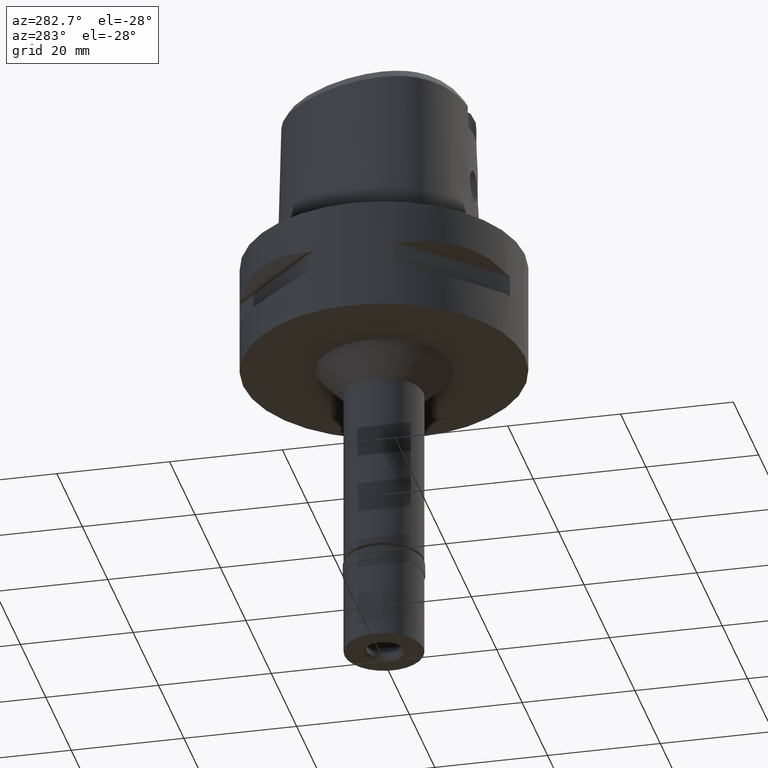
[diagram: clean part render]
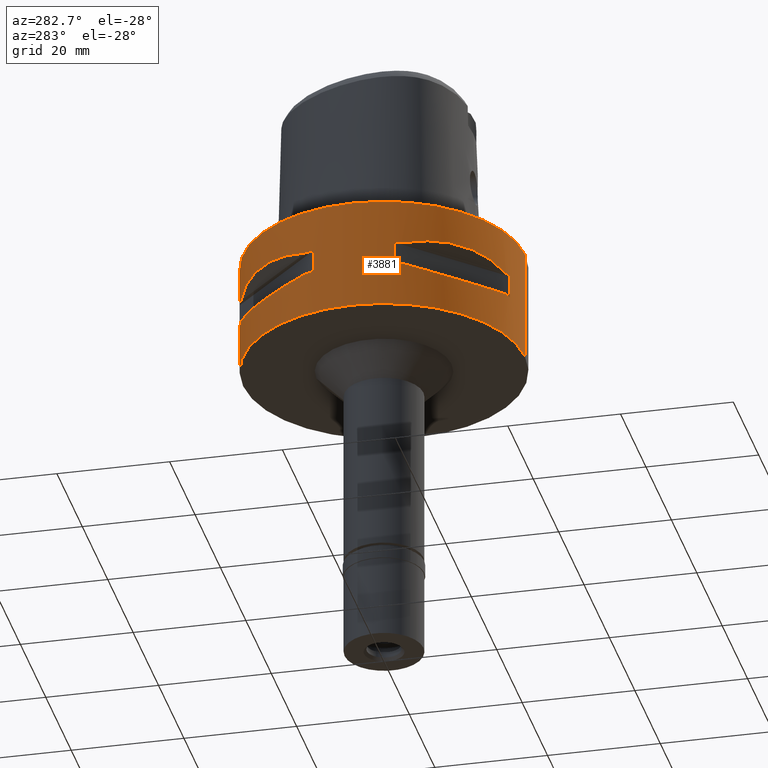
[diagram: same view with one face highlighted and labeled with its STEP entity id]
A machine part, auxiliary view. The second image highlights one B-rep face of the part: STEP entity #3881.
In plain terms, the highlighted cylindrical surface (partial cylindrical patch) has radius 25 mm, axis along (0, 0, -1).
Its self-contained STEP definition (entity closure, byte-faithful):
#7 = CARTESIAN_POINT ( 'NONE',  ( -8.646484890751999330, -23.45715880140000209, -12.05000000000000071 ) ) ;
#15 = CARTESIAN_POINT ( 'NONE',  ( -13.60713573003134336, -20.97251445226632427, -13.06082541677992737 ) ) ;
#24 = CARTESIAN_POINT ( 'NONE',  ( -20.11654071402983845, -14.85488513037752867, -6.779232838917351067 ) ) ;
#45 = CARTESIAN_POINT ( 'NONE',  ( -13.41274673326596734, -21.09754014382172116, -6.967492033991906197 ) ) ;
#46 = VECTOR ( 'NONE', #4462, 1000.000000000000000 ) ;
#72 = CARTESIAN_POINT ( 'NONE',  ( -13.48572973711240586, -21.05082155772251440, -6.956769630346564703 ) ) ;
#75 = CARTESIAN_POINT ( 'NONE',  ( -8.646484890751999330, -23.45715880140000209, -7.949999999998999201 ) ) ;
#148 = CARTESIAN_POINT ( 'NONE',  ( 0.0000000000000000000, 1.268121760516999976E-14, 0.0000000000000000000 ) ) ;
#216 = AXIS2_PLACEMENT_3D ( 'NONE', #3290, #3199, #2540 ) ;
#222 = CARTESIAN_POINT ( 'NONE',  ( -13.55971422200847876, 21.00321793043605112, -13.05400030967244973 ) ) ;
#260 = CARTESIAN_POINT ( 'NONE',  ( -16.07509500019082438, 19.18226349638528561, -6.662501322481643840 ) ) ;
#264 = EDGE_CURVE ( 'NONE', #4299, #1804, #3673, .T. ) ;
#265 = CARTESIAN_POINT ( 'NONE',  ( -12.20403021318595371, 21.82791133048168319, -12.83722430138688786 ) ) ;
#307 = CARTESIAN_POINT ( 'NONE',  ( 0.0000000000000000000, -25.00000000000000000, -20.00000000000000000 ) ) ;
#316 = CARTESIAN_POINT ( 'NONE',  ( -21.09754014382214038, -13.41274673326243061, -13.03250796600576145 ) ) ;
#371 = LINE ( 'NONE', #1915, #2850 ) ;
#390 = CARTESIAN_POINT ( 'NONE',  ( -21.05082155772251795, -13.48572973711011258, -13.04323036965143245 ) ) ;
#397 = CARTESIAN_POINT ( 'NONE',  ( -9.515641234303622298, -23.13678124605047159, -7.725961997872158982 ) ) ;
#437 = CIRCLE ( 'NONE', #744, 24.99999999999999645 ) ;
#444 = CARTESIAN_POINT ( 'NONE',  ( -12.20403021318549541, -21.82791133048300836, -7.162775698611675956 ) ) ;
#473 = LINE ( 'NONE', #1967, #1696 ) ;
#521 = CARTESIAN_POINT ( 'NONE',  ( -23.45715880140000209, 8.646484890751999330, -12.05000000000000071 ) ) ;
#530 = AXIS2_PLACEMENT_3D ( 'NONE', #148, #3875, #2126 ) ;
#550 = EDGE_CURVE ( 'NONE', #1225, #4546, #1493, .T. ) ;
#558 = DIRECTION ( 'NONE',  ( 0.0000000000000000000, 0.0000000000000000000, -1.000000000000000000 ) ) ;
#578 = VERTEX_POINT ( 'NONE', #2880 ) ;
#592 = CARTESIAN_POINT ( 'NONE',  ( -12.89853354822316334, 21.41803043592330980, -12.95342092614004059 ) ) ;
#604 = ORIENTED_EDGE ( 'NONE', *, *, #3760, .F. ) ;
#617 = CARTESIAN_POINT ( 'NONE',  ( -20.95817024473907608, 13.62920640916738080, -13.06397973560553183 ) ) ;
#661 = CARTESIAN_POINT ( 'NONE',  ( -13.90573822668236659, 20.77616787493510486, -6.897428778966878227 ) ) ;
#667 = EDGE_CURVE ( 'NONE', #4299, #2069, #1507, .T. ) ;
#672 = CARTESIAN_POINT ( 'NONE',  ( 0.0000000000000000000, -25.00000000000000000, 0.0000000000000000000 ) ) ;
#690 = CARTESIAN_POINT ( 'NONE',  ( -9.515641234304203167, 23.13678124604968644, -12.27403800212667484 ) ) ;
#699 = CARTESIAN_POINT ( 'NONE',  ( -23.95277699797999915, -7.159921374231999813, -12.05000000000000071 ) ) ;
#703 = VERTEX_POINT ( 'NONE', #4005 ) ;
#726 = CARTESIAN_POINT ( 'NONE',  ( -21.41803043592740607, -12.89853354821195097, -12.95342092613715756 ) ) ;
#731 = EDGE_CURVE ( 'NONE', #1878, #790, #1330, .T. ) ;
#744 = AXIS2_PLACEMENT_3D ( 'NONE', #2790, #558, #2052 ) ;
#751 = CARTESIAN_POINT ( 'NONE',  ( -13.67544437571095095, -20.92801700160415024, -13.07054629643969790 ) ) ;
#763 = VECTOR ( 'NONE', #2189, 1000.000000000000000 ) ;
#790 = VERTEX_POINT ( 'NONE', #699 ) ;
#794 = ORIENTED_EDGE ( 'NONE', *, *, #4571, .T. ) ;
#806 = CARTESIAN_POINT ( 'NONE',  ( -16.43106916202177459, -18.92421359266085545, -6.622523911514719863 ) ) ;
#830 = CARTESIAN_POINT ( 'NONE',  ( -20.56020460723686583, -14.22535762327827413, -6.855111341548293602 ) ) ;
#839 = EDGE_CURVE ( 'NONE', #1855, #939, #437, .T. ) ;
#887 = ORIENTED_EDGE ( 'NONE', *, *, #1529, .T. ) ;
#934 = AXIS2_PLACEMENT_3D ( 'NONE', #4814, #2209, #3340 ) ;
#939 = VERTEX_POINT ( 'NONE', #7 ) ;
#949 = CARTESIAN_POINT ( 'NONE',  ( -13.60713573003141086, 20.97251445226709876, -6.939174583218663095 ) ) ;
#970 = CARTESIAN_POINT ( 'NONE',  ( -23.45715880140000209, 8.646484890751999330, -7.949999999998999201 ) ) ;
#998 = CARTESIAN_POINT ( 'NONE',  ( -21.20561591939717516, 13.24197703503613432, -6.993086720738032724 ) ) ;
#1004 = CARTESIAN_POINT ( 'NONE',  ( -23.45715880140000209, 8.646484890751999330, -12.05000000000000071 ) ) ;
#1021 = CARTESIAN_POINT ( 'NONE',  ( -14.85488513039036818, 20.11654071401968480, -6.779232838916250614 ) ) ;
#1045 = CARTESIAN_POINT ( 'NONE',  ( -21.82791133048873178, -12.20403021316673353, -12.83722430138194071 ) ) ;
#1064 = LINE ( 'NONE', #4069, #763 ) ;
#1098 = CARTESIAN_POINT ( 'NONE',  ( -20.97251445226704547, -13.60713573003157428, -6.939174583218620462 ) ) ;
#1101 = CARTESIAN_POINT ( 'NONE',  ( -23.45715880140000209, -8.646484890751999330, -7.949999999998999201 ) ) ;
#1105 = VERTEX_POINT ( 'NONE', #2243 ) ;
#1111 = CARTESIAN_POINT ( 'NONE',  ( -21.01958685664123294, -13.53433973752398600, -13.05032380590026442 ) ) ;
#1119 = CARTESIAN_POINT ( 'NONE',  ( -13.53433973752544439, -21.01958685664153137, -6.949676194097961002 ) ) ;
#1133 = CARTESIAN_POINT ( 'NONE',  ( 0.0000000000000000000, 1.268121760516999976E-14, -12.05000000000000071 ) ) ;
#1136 = CYLINDRICAL_SURFACE ( 'NONE', #2096, 25.00000000000000000 ) ;
#1145 = CARTESIAN_POINT ( 'NONE',  ( -21.99328990739648759, -12.03062603423200372, -7.166052136924453642 ) ) ;
#1174 = CARTESIAN_POINT ( 'NONE',  ( -23.45715880140000209, 8.646484890751999330, -7.949999999998999201 ) ) ;
#1178 = EDGE_LOOP ( 'NONE', ( #887, #1898, #3316, #794 ) ) ;
#1192 = EDGE_CURVE ( 'NONE', #3388, #578, #4421, .T. ) ;
#1225 = VERTEX_POINT ( 'NONE', #1788 ) ;
#1287 = CARTESIAN_POINT ( 'NONE',  ( -12.03062603424247712, 21.99328990739261513, -7.166052136921753579 ) ) ;
#1313 = CARTESIAN_POINT ( 'NONE',  ( 0.0000000000000000000, 1.268121760516999976E-14, -7.950000000000000178 ) ) ;
#1330 = CIRCLE ( 'NONE', #934, 25.00000000000001066 ) ;
#1338 = ORIENTED_EDGE ( 'NONE', *, *, #3926, .F. ) ;
#1341 = DIRECTION ( 'NONE',  ( 0.0000000000000000000, 0.0000000000000000000, 1.000000000000000000 ) ) ;
#1350 = CARTESIAN_POINT ( 'NONE',  ( -13.53433973752487773, 21.01958685664092386, -13.05032380590049002 ) ) ;
#1367 = CARTESIAN_POINT ( 'NONE',  ( -21.82791133048288401, 12.20403021318581871, -7.162775698611593356 ) ) ;
#1371 = CARTESIAN_POINT ( 'NONE',  ( -13.41274673326552147, 21.09754014382100706, -13.03250796600654482 ) ) ;
#1419 = CARTESIAN_POINT ( 'NONE',  ( -8.646484890751999330, -23.45715880140000209, -12.05000000000000071 ) ) ;
#1453 = B_SPLINE_CURVE_WITH_KNOTS ( 'NONE', 3,
 ( #970, #4725, #4649, #1367, #2125, #998, #2874, #2484, #2410, #1747, #2826, #1691, #3620, #260, #1021, #1764, #661, #2145, #3176, #3246, #949, #1287, #3921, #2456 ),
 .UNSPECIFIED., .F., .F.,
 ( 4, 1, 1, 1, 1, 1, 2, 2, 2, 1, 1, 1, 1, 1, 2, 2, 4 ),
 ( 0.0000000000000000000, 0.1249999999999922562, 0.1874999999999882039, 0.2187499999999859557, 0.2343749999999848455, 0.2421874999999842903, 0.2460937499999842626, 0.2499999999999842071, 0.4999999999999868994, 0.6249999999999883427, 0.6874999999999888978, 0.7187499999999892308, 0.7343749999999894529, 0.7421874999999897859, 0.7460937499999900080, 0.7499999999999901190, 1.000000000000000000 ),
 .UNSPECIFIED. ) ;
#1465 = DIRECTION ( 'NONE',  ( -0.3458593956303108730, 0.9382863520558295534, 0.0000000000000000000 ) ) ;
#1468 = CARTESIAN_POINT ( 'NONE',  ( -21.20561591939858914, -13.24197703502974655, -13.00691327925887641 ) ) ;
#1493 = CIRCLE ( 'NONE', #4225, 24.99999999999999645 ) ;
#1507 = B_SPLINE_CURVE_WITH_KNOTS ( 'NONE', 3,
 ( #4729, #690, #4361, #265, #592, #2086, #1371, #3575, #1350, #222, #1728, #3210, #1798, #2851, #4709, #2831, #2129, #1750, #4335, #617, #2108, #3601, #2532, #1004 ),
 .UNSPECIFIED., .F., .F.,
 ( 4, 1, 1, 1, 1, 1, 2, 2, 2, 1, 1, 1, 1, 1, 2, 2, 4 ),
 ( 0.0000000000000000000, 0.1250000000000036637, 0.1875000000000053846, 0.2187500000000062450, 0.2343750000000066613, 0.2421875000000070222, 0.2460937500000072164, 0.2500000000000074385, 0.5000000000000064393, 0.6250000000000058842, 0.6875000000000056621, 0.7187500000000056621, 0.7343750000000057732, 0.7421875000000057732, 0.7460937500000057732, 0.7500000000000057732, 1.000000000000000000 ),
 .UNSPECIFIED. ) ;
#1512 = ORIENTED_EDGE ( 'NONE', *, *, #839, .T. ) ;
#1520 = CARTESIAN_POINT ( 'NONE',  ( -23.13678124605508302, -9.515641234289542894, -12.27403800212291785 ) ) ;
#1528 = CARTESIAN_POINT ( 'NONE',  ( -20.88268233906343951, -13.74471461761583058, -6.919682044202548177 ) ) ;
#1529 = EDGE_CURVE ( 'NONE', #3819, #4344, #3407, .T. ) ;
#1554 = CARTESIAN_POINT ( 'NONE',  ( -18.30096971348604740, -17.05439749816643058, -6.622489432101155593 ) ) ;
#1580 = CARTESIAN_POINT ( 'NONE',  ( -20.92801700160447709, -13.67544437571133287, -6.929453703558946742 ) ) ;
#1687 = DIRECTION ( 'NONE',  ( 0.0000000000000000000, 0.0000000000000000000, 1.000000000000000000 ) ) ;
#1691 = CARTESIAN_POINT ( 'NONE',  ( -18.92421359264128000, 16.43106916203722534, -6.622523911516391415 ) ) ;
#1696 = VECTOR ( 'NONE', #2636, 1000.000000000000000 ) ;
#1728 = CARTESIAN_POINT ( 'NONE',  ( -15.06560254767022045, 20.02826730454214754, -13.27075471794550943 ) ) ;
#1747 = CARTESIAN_POINT ( 'NONE',  ( -21.00321793043669416, 13.55971422200900811, -6.945999690326000398 ) ) ;
#1750 = CARTESIAN_POINT ( 'NONE',  ( -20.88268233906128657, 13.74471461761766378, -13.08031795579624479 ) ) ;
#1760 = CARTESIAN_POINT ( 'NONE',  ( 0.0000000000000000000, 1.268121760516999976E-14, -7.950000000000000178 ) ) ;
#1764 = CARTESIAN_POINT ( 'NONE',  ( -14.22535762328576681, 20.56020460723094700, -6.855111341547652337 ) ) ;
#1779 = LINE ( 'NONE', #2961, #46 ) ;
#1784 = ORIENTED_EDGE ( 'NONE', *, *, #1837, .F. ) ;
#1788 = CARTESIAN_POINT ( 'NONE',  ( -7.159921374235000080, 23.95277699797999915, -7.950000000000000178 ) ) ;
#1793 = FACE_BOUND ( 'NONE', #2307, .T. ) ;
#1798 = CARTESIAN_POINT ( 'NONE',  ( -18.30096971347869328, 17.05439749817792361, -13.37751056789945459 ) ) ;
#1804 = VERTEX_POINT ( 'NONE', #2883 ) ;
#1837 = EDGE_CURVE ( 'NONE', #3388, #4515, #3364, .T. ) ;
#1839 = DIRECTION ( 'NONE',  ( 0.0000000000000000000, -1.000000000000000000, 0.0000000000000000000 ) ) ;
#1849 = AXIS2_PLACEMENT_3D ( 'NONE', #1760, #1341, #2522 ) ;
#1855 = VERTEX_POINT ( 'NONE', #3795 ) ;
#1862 = EDGE_CURVE ( 'NONE', #703, #4153, #473, .T. ) ;
#1864 = VERTEX_POINT ( 'NONE', #1174 ) ;
#1871 = DIRECTION ( 'NONE',  ( -0.9581110799190402094, 0.2863968549694120291, 0.0000000000000000000 ) ) ;
#1878 = VERTEX_POINT ( 'NONE', #4560 ) ;
#1884 = CARTESIAN_POINT ( 'NONE',  ( -13.62920640916678572, -20.95817024473966939, -13.06397973560553716 ) ) ;
#1892 = CARTESIAN_POINT ( 'NONE',  ( -13.24197703503602419, -21.20561591939718937, -6.993086720738051376 ) ) ;
#1898 = ORIENTED_EDGE ( 'NONE', *, *, #2787, .F. ) ;
#1915 = CARTESIAN_POINT ( 'NONE',  ( -23.95277699797999915, -7.159921374231999813, -7.950000000000000178 ) ) ;
#1919 = EDGE_CURVE ( 'NONE', #1105, #790, #371, .T. ) ;
#1925 = AXIS2_PLACEMENT_3D ( 'NONE', #3654, #2854, #2111 ) ;
#1941 = CIRCLE ( 'NONE', #216, 24.99999999999999645 ) ;
#1967 = CARTESIAN_POINT ( 'NONE',  ( -23.95277699797999915, 7.159921374231999813, -12.05000000000000071 ) ) ;
#2008 = EDGE_CURVE ( 'NONE', #703, #2069, #2692, .T. ) ;
#2052 = DIRECTION ( 'NONE',  ( -0.2863968549694120291, -0.9581110799190402094, 0.0000000000000000000 ) ) ;
#2069 = VERTEX_POINT ( 'NONE', #521 ) ;
#2086 = CARTESIAN_POINT ( 'NONE',  ( -13.24197703503574530, 21.20561591939639356, -13.00691327926040941 ) ) ;
#2090 = EDGE_LOOP ( 'NONE', ( #4658, #4662, #1512, #1338, #2139, #4352, #3557, #1784 ) ) ;
#2096 = AXIS2_PLACEMENT_3D ( 'NONE', #4404, #3344, #1839 ) ;
#2108 = CARTESIAN_POINT ( 'NONE',  ( -20.97251445226646638, 13.60713573003095611, -13.06082541677981901 ) ) ;
#2111 = DIRECTION ( 'NONE',  ( 0.0000000000000000000, 1.000000000000000000, 0.0000000000000000000 ) ) ;
#2125 = CARTESIAN_POINT ( 'NONE',  ( -21.41803043592425126, 12.89853354822334808, -7.046579073858415754 ) ) ;
#2126 = DIRECTION ( 'NONE',  ( 0.0000000000000000000, -1.000000000000000000, 0.0000000000000000000 ) ) ;
#2129 = CARTESIAN_POINT ( 'NONE',  ( -20.77616787493465722, 13.90573822668246784, -13.10257122103190675 ) ) ;
#2134 = ORIENTED_EDGE ( 'NONE', *, *, #3984, .F. ) ;
#2139 = ORIENTED_EDGE ( 'NONE', *, *, #731, .T. ) ;
#2145 = CARTESIAN_POINT ( 'NONE',  ( -13.74471461761790003, 20.88268233906179816, -6.919682044202368765 ) ) ;
#2189 = DIRECTION ( 'NONE',  ( 0.0000000000000000000, 0.0000000000000000000, -1.000000000000000000 ) ) ;
#2209 = DIRECTION ( 'NONE',  ( 0.0000000000000000000, 0.0000000000000000000, -1.000000000000000000 ) ) ;
#2211 = CARTESIAN_POINT ( 'NONE',  ( -13.90573822667844439, -20.77616787493860073, -13.10257122103188010 ) ) ;
#2219 = CARTESIAN_POINT ( 'NONE',  ( -15.06560254768771223, -20.02826730453156046, -6.729245282050584365 ) ) ;
#2243 = CARTESIAN_POINT ( 'NONE',  ( -23.95277699797999915, -7.159921374235000080, -7.950000000000000178 ) ) ;
#2250 = CARTESIAN_POINT ( 'NONE',  ( -12.89853354822315801, -21.41803043592431521, -7.046579073858463715 ) ) ;
#2288 = CARTESIAN_POINT ( 'NONE',  ( -20.95817024474013479, -13.62920640916726001, -6.936020264393014223 ) ) ;
#2307 = EDGE_LOOP ( 'NONE', ( #4391, #4760, #2666, #4453, #3883, #2134, #4465, #604 ) ) ;
#2308 = CARTESIAN_POINT ( 'NONE',  ( -23.45715880140000209, -8.646484890756999775, -12.05000000000000071 ) ) ;
#2410 = CARTESIAN_POINT ( 'NONE',  ( -21.01958685664152426, 13.53433973752546216, -6.949676194097958337 ) ) ;
#2456 = CARTESIAN_POINT ( 'NONE',  ( -8.646484890751999330, 23.45715880140000209, -7.949999999998999201 ) ) ;
#2468 = VECTOR ( 'NONE', #3183, 1000.000000000000000 ) ;
#2484 = CARTESIAN_POINT ( 'NONE',  ( -21.05082155772250019, 13.48572973711244138, -6.956769630346555822 ) ) ;
#2522 = DIRECTION ( 'NONE',  ( -0.3458593956303108730, -0.9382863520558295534, 0.0000000000000000000 ) ) ;
#2532 = CARTESIAN_POINT ( 'NONE',  ( -22.81626994451528390, 10.38516041958025227, -12.49816953211541559 ) ) ;
#2540 = DIRECTION ( 'NONE',  ( -0.9581110799190402094, -0.2863968549694120291, 0.0000000000000000000 ) ) ;
#2550 = AXIS2_PLACEMENT_3D ( 'NONE', #1313, #4275, #3545 ) ;
#2552 = CARTESIAN_POINT ( 'NONE',  ( -14.85488513037911140, -20.11654071403224009, -13.22076716108321115 ) ) ;
#2597 = CARTESIAN_POINT ( 'NONE',  ( -20.02826730456327553, -15.06560254764963425, -13.27075471794574923 ) ) ;
#2630 = VECTOR ( 'NONE', #3447, 1000.000000000000000 ) ;
#2636 = DIRECTION ( 'NONE',  ( 0.0000000000000000000, 0.0000000000000000000, 1.000000000000000000 ) ) ;
#2660 = CARTESIAN_POINT ( 'NONE',  ( -22.81626994451701762, -10.38516041957876013, -7.501830467883404019 ) ) ;
#2666 = ORIENTED_EDGE ( 'NONE', *, *, #2008, .T. ) ;
#2692 = CIRCLE ( 'NONE', #3967, 24.99999999999999645 ) ;
#2767 = B_SPLINE_CURVE_WITH_KNOTS ( 'NONE', 3,
 ( #2308, #1520, #4474, #1045, #726, #1468, #316, #390, #1111, #2995, #2597, #3368, #3318, #4109, #2552, #3765, #2211, #4136, #751, #1884, #15, #4499, #4776, #1419 ),
 .UNSPECIFIED., .F., .F.,
 ( 4, 1, 1, 1, 1, 1, 2, 2, 2, 1, 1, 1, 1, 1, 2, 2, 4 ),
 ( 0.0000000000000000000, 0.1250000000000040246, 0.1875000000000059952, 0.2187500000000070222, 0.2343750000000075218, 0.2421875000000078548, 0.2460937500000080214, 0.2500000000000082157, 0.5000000000000073275, 0.6250000000000072164, 0.6875000000000067724, 0.7187500000000063283, 0.7343750000000063283, 0.7421875000000063283, 0.7460937500000062172, 0.7500000000000061062, 1.000000000000000000 ),
 .UNSPECIFIED. ) ;
#2787 = EDGE_CURVE ( 'NONE', #4270, #4344, #1779, .T. ) ;
#2790 = CARTESIAN_POINT ( 'NONE',  ( 0.0000000000000000000, 1.268121760516999976E-14, -12.05000000000000071 ) ) ;
#2826 = CARTESIAN_POINT ( 'NONE',  ( -20.02826730453874404, 15.06560254767642704, -6.729245282052261246 ) ) ;
#2831 = CARTESIAN_POINT ( 'NONE',  ( -20.56020460723066634, 14.22535762328647024, -13.14488865845144616 ) ) ;
#2850 = VECTOR ( 'NONE', #3400, 1000.000000000000000 ) ;
#2851 = CARTESIAN_POINT ( 'NONE',  ( -19.18226349638564088, 16.07509500019342141, -13.33749867751847695 ) ) ;
#2854 = DIRECTION ( 'NONE',  ( 0.0000000000000000000, 0.0000000000000000000, 1.000000000000000000 ) ) ;
#2874 = CARTESIAN_POINT ( 'NONE',  ( -21.09754014382168563, 13.41274673326602240, -6.967492033991893763 ) ) ;
#2880 = CARTESIAN_POINT ( 'NONE',  ( -7.159921374231999813, -23.95277699797999915, -7.950000000000000178 ) ) ;
#2883 = CARTESIAN_POINT ( 'NONE',  ( -7.159921374231999813, 23.95277699797999915, -12.05000000000000071 ) ) ;
#2961 = CARTESIAN_POINT ( 'NONE',  ( 0.0000000000000000000, -25.00000000000000000, 0.0000000000000000000 ) ) ;
#2973 = FACE_BOUND ( 'NONE', #2090, .T. ) ;
#2995 = CARTESIAN_POINT ( 'NONE',  ( -21.00321793043570295, -13.55971422200881804, -13.05400030967246572 ) ) ;
#3003 = CARTESIAN_POINT ( 'NONE',  ( -23.45715880140000209, -8.646484890751999330, -7.949999999998999201 ) ) ;
#3021 = CIRCLE ( 'NONE', #530, 25.00000000000000000 ) ;
#3025 = LINE ( 'NONE', #3050, #2630 ) ;
#3050 = CARTESIAN_POINT ( 'NONE',  ( -7.159921374231999813, -23.95277699797999915, -12.05000000000000071 ) ) ;
#3073 = EDGE_CURVE ( 'NONE', #4270, #3962, #3021, .T. ) ;
#3094 = CARTESIAN_POINT ( 'NONE',  ( -23.95277699797999915, 7.159921374231999813, -7.950000000000000178 ) ) ;
#3170 = DIRECTION ( 'NONE',  ( -0.2863968549694120291, 0.9581110799190402094, 0.0000000000000000000 ) ) ;
#3176 = CARTESIAN_POINT ( 'NONE',  ( -13.67544437571253013, 20.92801700160351785, -6.929453703558844602 ) ) ;
#3183 = DIRECTION ( 'NONE',  ( 0.0000000000000000000, 0.0000000000000000000, -1.000000000000000000 ) ) ;
#3199 = DIRECTION ( 'NONE',  ( 0.0000000000000000000, 0.0000000000000000000, 1.000000000000000000 ) ) ;
#3210 = CARTESIAN_POINT ( 'NONE',  ( -16.43106916203736390, 18.92421359263893876, -13.37747608848162528 ) ) ;
#3246 = CARTESIAN_POINT ( 'NONE',  ( -13.62920640916787285, 20.95817024473965873, -6.936020264392963597 ) ) ;
#3290 = CARTESIAN_POINT ( 'NONE',  ( 0.0000000000000000000, 1.268121760516999976E-14, -7.950000000000000178 ) ) ;
#3299 = CARTESIAN_POINT ( 'NONE',  ( 0.0000000000000000000, 25.00000000000000000, 0.0000000000000000000 ) ) ;
#3316 = ORIENTED_EDGE ( 'NONE', *, *, #3073, .T. ) ;
#3318 = CARTESIAN_POINT ( 'NONE',  ( -17.05439749816806838, -18.30096971348829982, -13.37751056789936221 ) ) ;
#3340 = DIRECTION ( 'NONE',  ( -0.9382863520558295534, -0.3458593956303108730, 0.0000000000000000000 ) ) ;
#3344 = DIRECTION ( 'NONE',  ( 0.0000000000000000000, 0.0000000000000000000, -1.000000000000000000 ) ) ;
#3364 = B_SPLINE_CURVE_WITH_KNOTS ( 'NONE', 3,
 ( #4540, #397, #4168, #444, #2250, #1892, #45, #72, #1119, #3375, #2219, #806, #1554, #4118, #24, #830, #4508, #1528, #1580, #2288, #1098, #1145, #2660, #3003 ),
 .UNSPECIFIED., .F., .F.,
 ( 4, 1, 1, 1, 1, 1, 2, 2, 2, 1, 1, 1, 1, 1, 2, 2, 4 ),
 ( 0.0000000000000000000, 0.1250000000000003331, 0.1875000000000006106, 0.2187500000000008327, 0.2343750000000008604, 0.2421875000000008049, 0.2460937500000007772, 0.2500000000000007216, 0.5000000000000044409, 0.6250000000000065503, 0.6875000000000074385, 0.7187500000000076605, 0.7343750000000077716, 0.7421875000000075495, 0.7460937500000073275, 0.7500000000000071054, 1.000000000000000000 ),
 .UNSPECIFIED. ) ;
#3368 = CARTESIAN_POINT ( 'NONE',  ( -18.92421359265863146, -16.43106916201822187, -13.37747608848186154 ) ) ;
#3375 = CARTESIAN_POINT ( 'NONE',  ( -13.55971422200883225, -21.00321793043679364, -6.945999690326023490 ) ) ;
#3388 = VERTEX_POINT ( 'NONE', #75 ) ;
#3400 = DIRECTION ( 'NONE',  ( 0.0000000000000000000, 0.0000000000000000000, -1.000000000000000000 ) ) ;
#3407 = CIRCLE ( 'NONE', #1925, 25.00000000000000000 ) ;
#3447 = DIRECTION ( 'NONE',  ( 0.0000000000000000000, 0.0000000000000000000, 1.000000000000000000 ) ) ;
#3532 = CARTESIAN_POINT ( 'NONE',  ( 0.0000000000000000000, 25.00000000000000000, 0.0000000000000000000 ) ) ;
#3544 = CARTESIAN_POINT ( 'NONE',  ( 0.0000000000000000000, 1.268121760516999976E-14, -7.950000000000000178 ) ) ;
#3545 = DIRECTION ( 'NONE',  ( -0.9382863520558295534, 0.3458593956303108730, 0.0000000000000000000 ) ) ;
#3548 = CARTESIAN_POINT ( 'NONE',  ( 0.0000000000000000000, 25.00000000000000000, -20.00000000000000000 ) ) ;
#3557 = ORIENTED_EDGE ( 'NONE', *, *, #4314, .T. ) ;
#3575 = CARTESIAN_POINT ( 'NONE',  ( -13.48572973711189782, 21.05082155772187136, -13.04323036965188543 ) ) ;
#3601 = CARTESIAN_POINT ( 'NONE',  ( -21.99328990739455136, 12.03062603423328625, -12.83394786307419722 ) ) ;
#3620 = CARTESIAN_POINT ( 'NONE',  ( -17.05439749817622896, 18.30096971347832024, -6.622489432100318041 ) ) ;
#3654 = CARTESIAN_POINT ( 'NONE',  ( 0.0000000000000000000, 1.268121760516999976E-14, -20.00000000000000000 ) ) ;
#3673 = CIRCLE ( 'NONE', #4302, 25.00000000000001066 ) ;
#3743 = FACE_OUTER_BOUND ( 'NONE', #1178, .T. ) ;
#3760 = EDGE_CURVE ( 'NONE', #1864, #4546, #1453, .T. ) ;
#3765 = CARTESIAN_POINT ( 'NONE',  ( -14.22535762327893316, -20.56020460723799559, -13.14488865845136623 ) ) ;
#3795 = CARTESIAN_POINT ( 'NONE',  ( -7.159921374235000080, -23.95277699797999915, -12.05000000000000071 ) ) ;
#3819 = VERTEX_POINT ( 'NONE', #3548 ) ;
#3875 = DIRECTION ( 'NONE',  ( 0.0000000000000000000, 0.0000000000000000000, -1.000000000000000000 ) ) ;
#3881 = ADVANCED_FACE ( 'NONE', ( #3743, #1793, #2973 ), #1136, .T. ) ;
#3883 = ORIENTED_EDGE ( 'NONE', *, *, #264, .T. ) ;
#3889 = CARTESIAN_POINT ( 'NONE',  ( -8.646484890756999775, 23.45715880140000209, -12.05000000000000071 ) ) ;
#3921 = CARTESIAN_POINT ( 'NONE',  ( -10.38516041958922997, 22.81626994451316648, -7.501830467880704845 ) ) ;
#3926 = EDGE_CURVE ( 'NONE', #1878, #939, #2767, .T. ) ;
#3962 = VERTEX_POINT ( 'NONE', #3299 ) ;
#3967 = AXIS2_PLACEMENT_3D ( 'NONE', #4459, #4096, #1871 ) ;
#3984 = EDGE_CURVE ( 'NONE', #1225, #1804, #1064, .T. ) ;
#4005 = CARTESIAN_POINT ( 'NONE',  ( -23.95277699797999915, 7.159921374235000080, -12.05000000000000071 ) ) ;
#4069 = CARTESIAN_POINT ( 'NONE',  ( -7.159921374231999813, 23.95277699797999915, -7.950000000000000178 ) ) ;
#4096 = DIRECTION ( 'NONE',  ( 0.0000000000000000000, 0.0000000000000000000, -1.000000000000000000 ) ) ;
#4103 = EDGE_CURVE ( 'NONE', #1855, #578, #3025, .T. ) ;
#4109 = CARTESIAN_POINT ( 'NONE',  ( -16.07509500017618720, -19.18226349640238837, -13.33749867751829399 ) ) ;
#4118 = CARTESIAN_POINT ( 'NONE',  ( -19.18226349639881434, -16.07509500017370030, -6.662501322483113775 ) ) ;
#4136 = CARTESIAN_POINT ( 'NONE',  ( -13.74471461761558899, -20.88268233906331872, -13.08031795579623768 ) ) ;
#4153 = VERTEX_POINT ( 'NONE', #3094 ) ;
#4168 = CARTESIAN_POINT ( 'NONE',  ( -10.78455809746240845, -22.58788056561823154, -7.432016622167690656 ) ) ;
#4194 = LINE ( 'NONE', #3532, #2468 ) ;
#4225 = AXIS2_PLACEMENT_3D ( 'NONE', #3544, #1687, #3170 ) ;
#4270 = VERTEX_POINT ( 'NONE', #672 ) ;
#4275 = DIRECTION ( 'NONE',  ( 0.0000000000000000000, 0.0000000000000000000, 1.000000000000000000 ) ) ;
#4299 = VERTEX_POINT ( 'NONE', #3889 ) ;
#4302 = AXIS2_PLACEMENT_3D ( 'NONE', #1133, #4526, #1465 ) ;
#4314 = EDGE_CURVE ( 'NONE', #1105, #4515, #1941, .T. ) ;
#4335 = CARTESIAN_POINT ( 'NONE',  ( -20.92801700160297074, 13.67544437571214822, -13.07054629643969967 ) ) ;
#4344 = VERTEX_POINT ( 'NONE', #307 ) ;
#4352 = ORIENTED_EDGE ( 'NONE', *, *, #1919, .F. ) ;
#4361 = CARTESIAN_POINT ( 'NONE',  ( -10.78455809746334104, 22.58788056561675717, -12.56798337783100550 ) ) ;
#4370 = CIRCLE ( 'NONE', #2550, 25.00000000000001066 ) ;
#4391 = ORIENTED_EDGE ( 'NONE', *, *, #4487, .T. ) ;
#4404 = CARTESIAN_POINT ( 'NONE',  ( 0.0000000000000000000, 1.268121760516999976E-14, 3.550000000000000266 ) ) ;
#4421 = CIRCLE ( 'NONE', #1849, 25.00000000000001066 ) ;
#4453 = ORIENTED_EDGE ( 'NONE', *, *, #667, .F. ) ;
#4459 = CARTESIAN_POINT ( 'NONE',  ( 0.0000000000000000000, 1.268121760516999976E-14, -12.05000000000000071 ) ) ;
#4462 = DIRECTION ( 'NONE',  ( 0.0000000000000000000, 0.0000000000000000000, -1.000000000000000000 ) ) ;
#4465 = ORIENTED_EDGE ( 'NONE', *, *, #550, .T. ) ;
#4474 = CARTESIAN_POINT ( 'NONE',  ( -22.58788056562619673, -10.78455809743770644, -12.56798337782441166 ) ) ;
#4487 = EDGE_CURVE ( 'NONE', #1864, #4153, #4370, .T. ) ;
#4499 = CARTESIAN_POINT ( 'NONE',  ( -12.03062603420926635, -21.99328990740340473, -12.83394786306801905 ) ) ;
#4508 = CARTESIAN_POINT ( 'NONE',  ( -20.77616787493827388, -13.90573822667835202, -6.897428778967221064 ) ) ;
#4512 = CARTESIAN_POINT ( 'NONE',  ( -8.646484890751999330, 23.45715880140000209, -7.949999999998999201 ) ) ;
#4515 = VERTEX_POINT ( 'NONE', #1101 ) ;
#4526 = DIRECTION ( 'NONE',  ( 0.0000000000000000000, 0.0000000000000000000, -1.000000000000000000 ) ) ;
#4540 = CARTESIAN_POINT ( 'NONE',  ( -8.646484890751999330, -23.45715880140000209, -7.949999999998999201 ) ) ;
#4546 = VERTEX_POINT ( 'NONE', #4512 ) ;
#4560 = CARTESIAN_POINT ( 'NONE',  ( -23.45715880140000209, -8.646484890756999775, -12.05000000000000071 ) ) ;
#4571 = EDGE_CURVE ( 'NONE', #3962, #3819, #4194, .T. ) ;
#4649 = CARTESIAN_POINT ( 'NONE',  ( -22.58788056561807878, 10.78455809746283833, -7.432016622167582298 ) ) ;
#4658 = ORIENTED_EDGE ( 'NONE', *, *, #1192, .T. ) ;
#4662 = ORIENTED_EDGE ( 'NONE', *, *, #4103, .F. ) ;
#4709 = CARTESIAN_POINT ( 'NONE',  ( -20.11654071401966348, 14.85488513039203440, -13.22076716108334260 ) ) ;
#4725 = CARTESIAN_POINT ( 'NONE',  ( -23.13678124605037567, 9.515641234303862106, -7.725961997872097697 ) ) ;
#4729 = CARTESIAN_POINT ( 'NONE',  ( -8.646484890756999775, 23.45715880140000209, -12.05000000000000071 ) ) ;
#4760 = ORIENTED_EDGE ( 'NONE', *, *, #1862, .F. ) ;
#4776 = CARTESIAN_POINT ( 'NONE',  ( -10.38516041955622704, -22.81626994452413015, -12.49816953210922854 ) ) ;
#4814 = CARTESIAN_POINT ( 'NONE',  ( 0.0000000000000000000, 1.268121760516999976E-14, -12.05000000000000071 ) ) ;